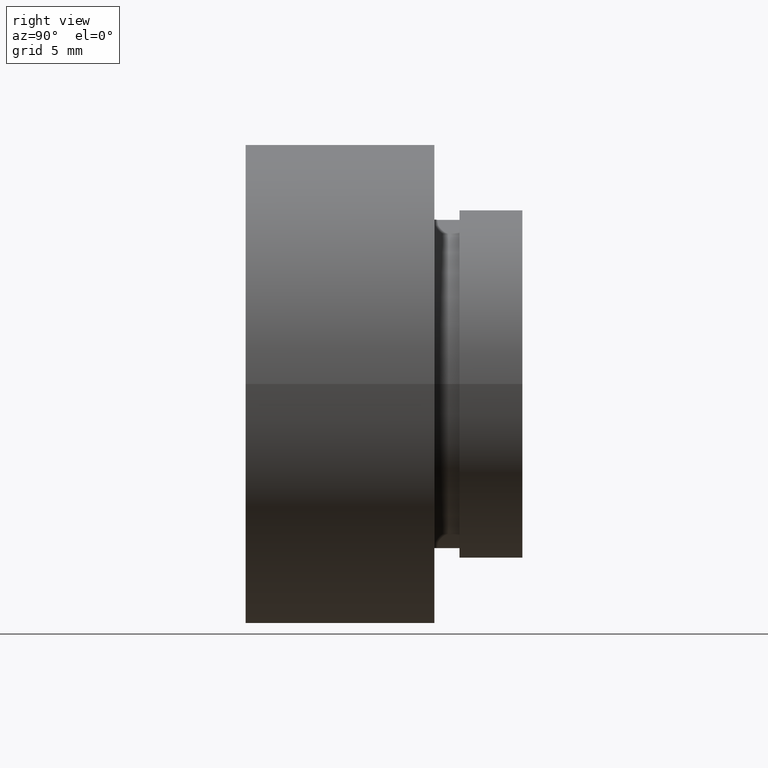
[diagram: clean part render]
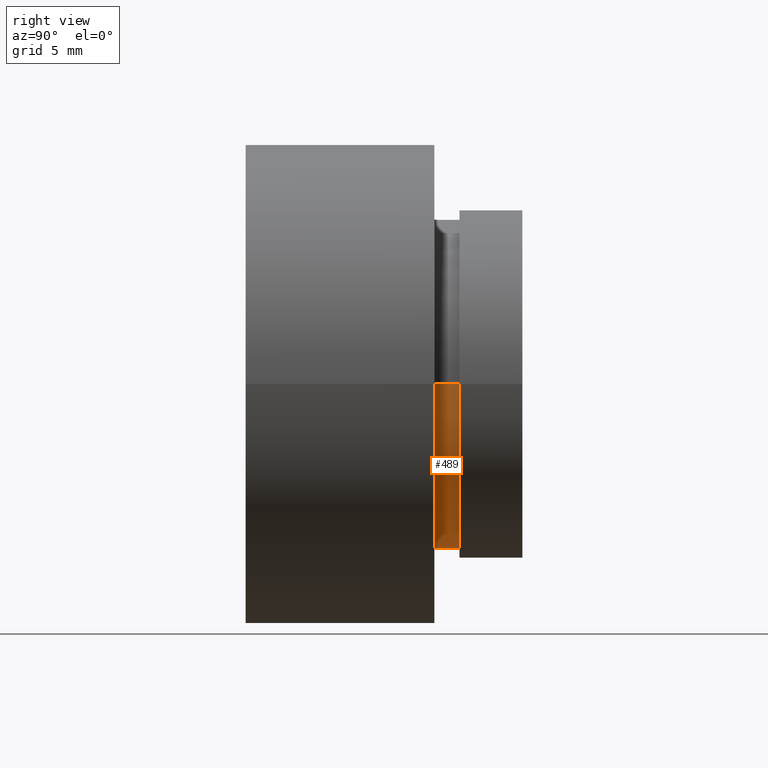
[diagram: same view with one face highlighted and labeled with its STEP entity id]
A machine part, right view. The second image highlights one B-rep face of the part: STEP entity #489.
In plain terms, the highlighted cylindrical surface (partial cylindrical patch) has radius 6.55 mm, axis along (-0, 1, -0).
Its self-contained STEP definition (entity closure, byte-faithful):
#2 = EDGE_CURVE ( 'NONE', #444, #619, #563, .T. ) ;
#17 = DIRECTION ( 'NONE',  ( -1.224646799147351000E-016, 1.000000000000000000, -0.0000000000000000000 ) ) ;
#27 = DIRECTION ( 'NONE',  ( -1.000000000000000000, 0.0000000000000000000, 0.0000000000000000000 ) ) ;
#33 = CIRCLE ( 'NONE', #182, 6.549999999999998900 ) ;
#43 = CARTESIAN_POINT ( 'NONE',  ( -6.549999999999998000, 8.500000000000000000, 0.0000000000000000000 ) ) ;
#44 = EDGE_CURVE ( 'NONE', #444, #325, #69, .T. ) ;
#61 = AXIS2_PLACEMENT_3D ( 'NONE', #118, #222, #27 ) ;
#64 = DIRECTION ( 'NONE',  ( -1.224646799147351000E-016, 1.000000000000000000, -0.0000000000000000000 ) ) ;
#69 = CIRCLE ( 'NONE', #363, 6.549999999999999800 ) ;
#88 = CARTESIAN_POINT ( 'NONE',  ( 1.149455719078122500E-015, 7.500000000000000000, 0.0000000000000000000 ) ) ;
#99 = VECTOR ( 'NONE', #17, 1000.000000000000000 ) ;
#118 = CARTESIAN_POINT ( 'NONE',  ( 0.0000000000000000000, 16.88601823708207700, 0.0000000000000000000 ) ) ;
#126 = DIRECTION ( 'NONE',  ( -1.224646799147351000E-016, 1.000000000000000000, -0.0000000000000000000 ) ) ;
#140 = DIRECTION ( 'NONE',  ( -1.224646799147351000E-016, 1.000000000000000000, -0.0000000000000000000 ) ) ;
#180 = FACE_OUTER_BOUND ( 'NONE', #545, .T. ) ;
#182 = AXIS2_PLACEMENT_3D ( 'NONE', #585, #64, #354 ) ;
#201 = VECTOR ( 'NONE', #126, 1000.000000000000000 ) ;
#206 = LINE ( 'NONE', #227, #99 ) ;
#222 = DIRECTION ( 'NONE',  ( -1.224646799147351000E-016, 1.000000000000000000, -0.0000000000000000000 ) ) ;
#226 = VERTEX_POINT ( 'NONE', #43 ) ;
#227 = CARTESIAN_POINT ( 'NONE',  ( -6.549999999999998900, 16.88601823708207700, 0.0000000000000000000 ) ) ;
#295 = EDGE_CURVE ( 'NONE', #619, #226, #33, .T. ) ;
#304 = CARTESIAN_POINT ( 'NONE',  ( -6.549999999999998900, 7.499999999999999100, 0.0000000000000000000 ) ) ;
#309 = ORIENTED_EDGE ( 'NONE', *, *, #2, .F. ) ;
#325 = VERTEX_POINT ( 'NONE', #304 ) ;
#343 = CYLINDRICAL_SURFACE ( 'NONE', #61, 6.549999999999998900 ) ;
#354 = DIRECTION ( 'NONE',  ( -1.000000000000000000, 0.0000000000000000000, 0.0000000000000000000 ) ) ;
#363 = AXIS2_PLACEMENT_3D ( 'NONE', #88, #140, #570 ) ;
#399 = ORIENTED_EDGE ( 'NONE', *, *, #295, .F. ) ;
#404 = EDGE_CURVE ( 'NONE', #325, #226, #206, .T. ) ;
#444 = VERTEX_POINT ( 'NONE', #452 ) ;
#452 = CARTESIAN_POINT ( 'NONE',  ( 6.550000000000000700, 7.500000000000000900, 8.021436534415164200E-016 ) ) ;
#464 = ORIENTED_EDGE ( 'NONE', *, *, #44, .T. ) ;
#489 = ADVANCED_FACE ( 'NONE', ( #180 ), #343, .T. ) ;
#539 = ORIENTED_EDGE ( 'NONE', *, *, #404, .T. ) ;
#545 = EDGE_LOOP ( 'NONE', ( #309, #464, #539, #399 ) ) ;
#559 = CARTESIAN_POINT ( 'NONE',  ( 6.549999999999998900, 16.88601823708207700, 8.021436534415162300E-016 ) ) ;
#562 = CARTESIAN_POINT ( 'NONE',  ( 6.549999999999999800, 8.500000000000000000, 8.021436534415162300E-016 ) ) ;
#563 = LINE ( 'NONE', #559, #201 ) ;
#570 = DIRECTION ( 'NONE',  ( -1.000000000000000000, -1.324216393875425300E-016, 0.0000000000000000000 ) ) ;
#585 = CARTESIAN_POINT ( 'NONE',  ( 1.026991039163387500E-015, 8.500000000000000000, 0.0000000000000000000 ) ) ;
#619 = VERTEX_POINT ( 'NONE', #562 ) ;